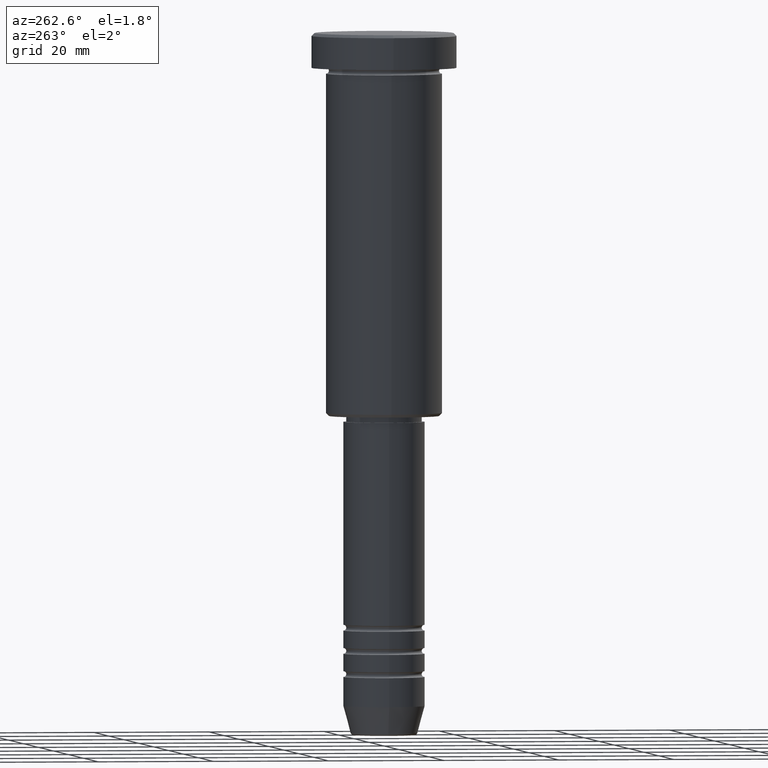
[diagram: clean part render]
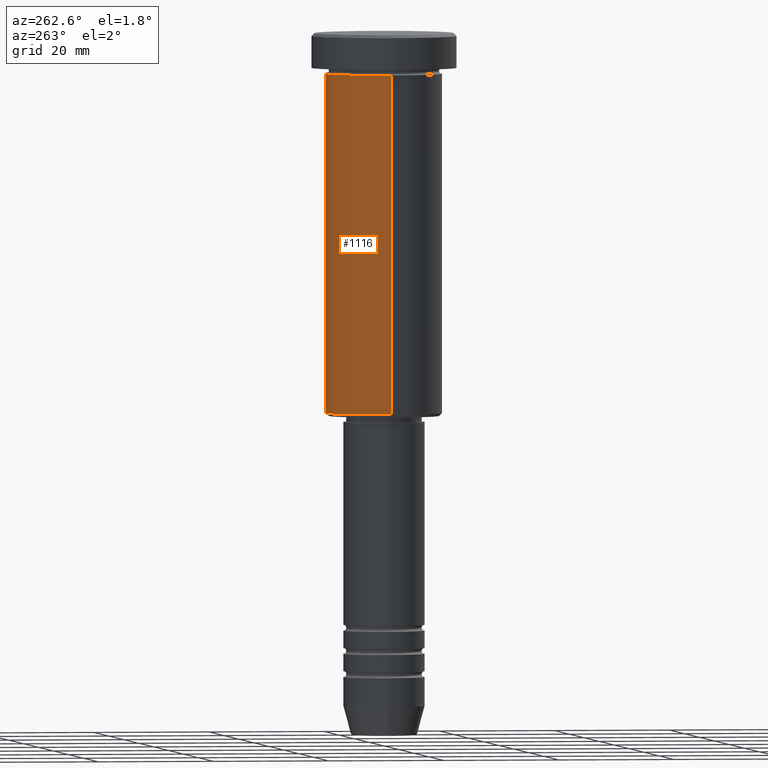
[diagram: same view with one face highlighted and labeled with its STEP entity id]
A machine part, auxiliary view. The second image highlights one B-rep face of the part: STEP entity #1116.
In plain terms, the highlighted cylindrical surface (partial cylindrical patch) has radius 10 mm, axis along (-0, -0, 1).
Its self-contained STEP definition (entity closure, byte-faithful):
#13 = VERTEX_POINT ( 'NONE', #1124 ) ;
#23 = VECTOR ( 'NONE', #89, 1000.000000000000000 ) ;
#38 = CIRCLE ( 'NONE', #387, 10.00000000000000000 ) ;
#88 = FACE_OUTER_BOUND ( 'NONE', #327, .T. ) ;
#89 = DIRECTION ( 'NONE',  ( -0.000000000000000000, -0.000000000000000000, 1.000000000000000000 ) ) ;
#98 = DIRECTION ( 'NONE',  ( 1.000000000000000000, 0.000000000000000000, 0.000000000000000000 ) ) ;
#116 = EDGE_CURVE ( 'NONE', #179, #767, #1109, .T. ) ;
#120 = DIRECTION ( 'NONE',  ( 1.000000000000000000, 0.000000000000000000, 0.000000000000000000 ) ) ;
#179 = VERTEX_POINT ( 'NONE', #479 ) ;
#201 = CARTESIAN_POINT ( 'NONE',  ( -10.00000000000000000, 1.224646799147353256E-15, 0.000000000000000000 ) ) ;
#293 = CARTESIAN_POINT ( 'NONE',  ( 0.000000000000000000, 0.000000000000000000, -6.999999999999996447 ) ) ;
#327 = EDGE_LOOP ( 'NONE', ( #921, #609, #517, #675 ) ) ;
#346 = DIRECTION ( 'NONE',  ( -1.000000000000000000, 0.000000000000000000, 0.000000000000000000 ) ) ;
#379 = CARTESIAN_POINT ( 'NONE',  ( 10.00000000000000000, 0.000000000000000000, -6.999999999999996447 ) ) ;
#387 = AXIS2_PLACEMENT_3D ( 'NONE', #582, #1061, #346 ) ;
#479 = CARTESIAN_POINT ( 'NONE',  ( -10.00000000000000000, 1.224646799147353256E-15, -65.50000000000001421 ) ) ;
#498 = AXIS2_PLACEMENT_3D ( 'NONE', #293, #1132, #120 ) ;
#499 = AXIS2_PLACEMENT_3D ( 'NONE', #1112, #911, #98 ) ;
#517 = ORIENTED_EDGE ( 'NONE', *, *, #587, .F. ) ;
#574 = VERTEX_POINT ( 'NONE', #379 ) ;
#582 = CARTESIAN_POINT ( 'NONE',  ( 0.000000000000000000, 0.000000000000000000, -65.50000000000001421 ) ) ;
#587 = EDGE_CURVE ( 'NONE', #574, #767, #884, .T. ) ;
#609 = ORIENTED_EDGE ( 'NONE', *, *, #116, .T. ) ;
#629 = LINE ( 'NONE', #998, #23 ) ;
#645 = DIRECTION ( 'NONE',  ( -0.000000000000000000, -0.000000000000000000, 1.000000000000000000 ) ) ;
#675 = ORIENTED_EDGE ( 'NONE', *, *, #707, .F. ) ;
#707 = EDGE_CURVE ( 'NONE', #13, #574, #629, .T. ) ;
#767 = VERTEX_POINT ( 'NONE', #1079 ) ;
#857 = EDGE_CURVE ( 'NONE', #13, #179, #38, .T. ) ;
#884 = CIRCLE ( 'NONE', #498, 10.00000000000000000 ) ;
#911 = DIRECTION ( 'NONE',  ( -0.000000000000000000, -0.000000000000000000, 1.000000000000000000 ) ) ;
#921 = ORIENTED_EDGE ( 'NONE', *, *, #857, .T. ) ;
#984 = VECTOR ( 'NONE', #645, 1000.000000000000000 ) ;
#998 = CARTESIAN_POINT ( 'NONE',  ( 10.00000000000000000, 0.000000000000000000, 0.000000000000000000 ) ) ;
#1009 = CYLINDRICAL_SURFACE ( 'NONE', #499, 10.00000000000000000 ) ;
#1061 = DIRECTION ( 'NONE',  ( -0.000000000000000000, -0.000000000000000000, 1.000000000000000000 ) ) ;
#1079 = CARTESIAN_POINT ( 'NONE',  ( -10.00000000000000000, 1.224646799147353256E-15, -6.999999999999996447 ) ) ;
#1109 = LINE ( 'NONE', #201, #984 ) ;
#1112 = CARTESIAN_POINT ( 'NONE',  ( 0.000000000000000000, 0.000000000000000000, 0.000000000000000000 ) ) ;
#1116 = ADVANCED_FACE ( 'NONE', ( #88 ), #1009, .T. ) ;
#1124 = CARTESIAN_POINT ( 'NONE',  ( 10.00000000000000000, 0.000000000000000000, -65.50000000000001421 ) ) ;
#1132 = DIRECTION ( 'NONE',  ( -0.000000000000000000, -0.000000000000000000, 1.000000000000000000 ) ) ;